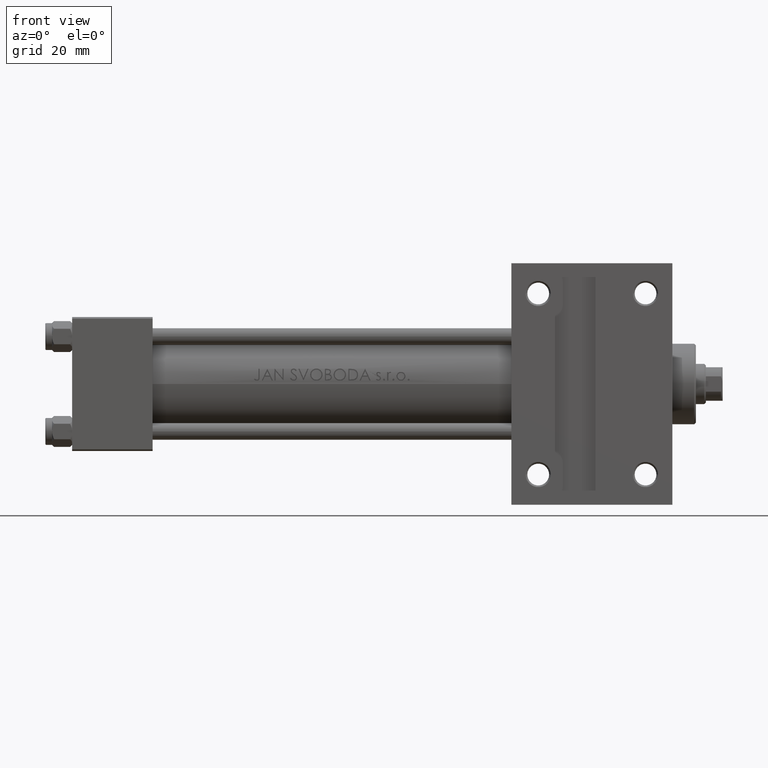
[diagram: clean part render]
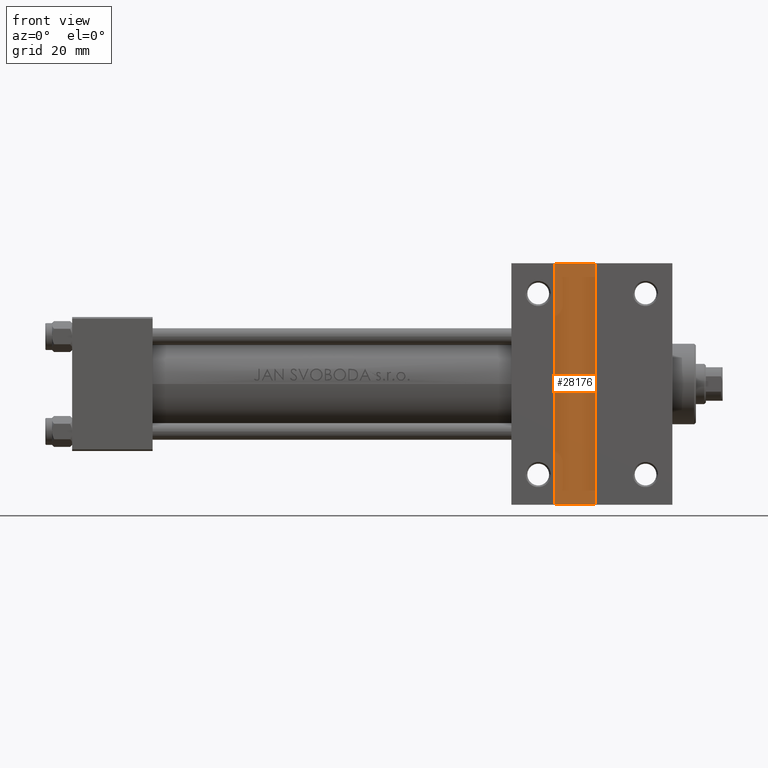
[diagram: same view with one face highlighted and labeled with its STEP entity id]
A machine part, front view. The second image highlights one B-rep face of the part: STEP entity #28176.
In plain terms, the highlighted planar face has unit normal (0, -1, 0).
Its self-contained STEP definition (entity closure, byte-faithful):
#2000 = CARTESIAN_POINT ( 'NONE',  ( 155.9999999999999716, -36.00000000000000711, -17.50000000000000000 ) ) ;
#7558 = LINE ( 'NONE', #15481, #31896 ) ;
#8498 = FACE_OUTER_BOUND ( 'NONE', #11892, .T. ) ;
#10039 = EDGE_CURVE ( 'NONE', #25659, #17874, #7558, .T. ) ;
#10070 = EDGE_CURVE ( 'NONE', #27182, #25659, #30178, .T. ) ;
#11892 = EDGE_LOOP ( 'NONE', ( #14410, #37373, #12957, #21864 ) ) ;
#12227 = VECTOR ( 'NONE', #25555, 1000.000000000000000 ) ;
#12838 = DIRECTION ( 'NONE',  ( 0.000000000000000000, 0.000000000000000000, -1.000000000000000000 ) ) ;
#12957 = ORIENTED_EDGE ( 'NONE', *, *, #10070, .T. ) ;
#14410 = ORIENTED_EDGE ( 'NONE', *, *, #24549, .T. ) ;
#14776 = DIRECTION ( 'NONE',  ( 0.000000000000000000, 1.000000000000000000, 0.000000000000000000 ) ) ;
#15481 = CARTESIAN_POINT ( 'NONE',  ( 144.0000000000000000, 35.99999999999998579, -17.50000000000000000 ) ) ;
#17874 = VERTEX_POINT ( 'NONE', #45923 ) ;
#19574 = VECTOR ( 'NONE', #14776, 1000.000000000000000 ) ;
#19584 = VERTEX_POINT ( 'NONE', #2000 ) ;
#20810 = AXIS2_PLACEMENT_3D ( 'NONE', #41994, #12838, #23175 ) ;
#21864 = ORIENTED_EDGE ( 'NONE', *, *, #10039, .T. ) ;
#23175 = DIRECTION ( 'NONE',  ( -1.000000000000000000, 0.000000000000000000, -0.000000000000000000 ) ) ;
#23344 = EDGE_CURVE ( 'NONE', #19584, #27182, #43234, .T. ) ;
#24549 = EDGE_CURVE ( 'NONE', #17874, #19584, #32569, .T. ) ;
#24671 = DIRECTION ( 'NONE',  ( -1.000000000000000000, -0.000000000000000000, -0.000000000000000000 ) ) ;
#25555 = DIRECTION ( 'NONE',  ( -0.000000000000000000, -1.000000000000000000, -0.000000000000000000 ) ) ;
#25659 = VERTEX_POINT ( 'NONE', #37384 ) ;
#27182 = VERTEX_POINT ( 'NONE', #39252 ) ;
#28176 = ADVANCED_FACE ( 'NONE', ( #8498 ), #41506, .T. ) ;
#30178 = LINE ( 'NONE', #36710, #19574 ) ;
#31896 = VECTOR ( 'NONE', #36951, 1000.000000000000000 ) ;
#32569 = LINE ( 'NONE', #36658, #12227 ) ;
#32951 = VECTOR ( 'NONE', #24671, 1000.000000000000000 ) ;
#36658 = CARTESIAN_POINT ( 'NONE',  ( 155.9999999999999716, -36.00000000000002132, -17.50000000000000000 ) ) ;
#36710 = CARTESIAN_POINT ( 'NONE',  ( 144.0000000000000000, -36.00000000000002132, -17.50000000000000000 ) ) ;
#36951 = DIRECTION ( 'NONE',  ( 1.000000000000000000, 0.000000000000000000, 0.000000000000000000 ) ) ;
#37373 = ORIENTED_EDGE ( 'NONE', *, *, #23344, .T. ) ;
#37384 = CARTESIAN_POINT ( 'NONE',  ( 144.0000000000000000, 35.99999999999998579, -17.50000000000000000 ) ) ;
#39252 = CARTESIAN_POINT ( 'NONE',  ( 144.0000000000000000, -36.00000000000002132, -17.50000000000000000 ) ) ;
#39628 = CARTESIAN_POINT ( 'NONE',  ( 144.0000000000000000, -36.00000000000002132, -17.50000000000000000 ) ) ;
#41506 = PLANE ( 'NONE',  #20810 ) ;
#41994 = CARTESIAN_POINT ( 'NONE',  ( 0.000000000000000000, 0.000000000000000000, -17.50000000000000000 ) ) ;
#43234 = LINE ( 'NONE', #39628, #32951 ) ;
#45923 = CARTESIAN_POINT ( 'NONE',  ( 155.9999999999999716, 35.99999999999998579, -17.50000000000000000 ) ) ;